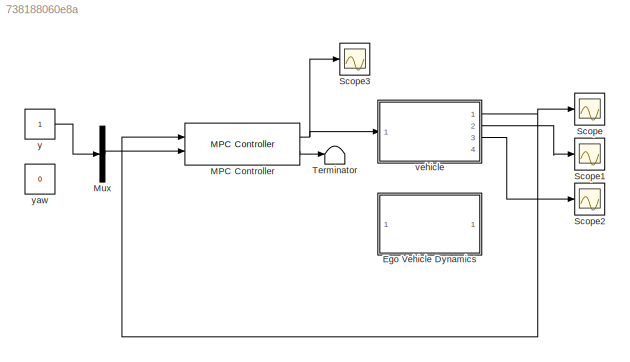
MODEL slx_738188060e8a
KIND model
CONFIG AbsTol = auto
CONFIG EnableMultiTasking = off
CONFIG FixedStep = auto
CONFIG MaxStep = auto
CONFIG MinStep = auto
CONFIG RelTol = 1e-3
CONFIG SampleTimeConstraint = Unconstrained
CONFIG Solver = VariableStepAuto
CONFIG SolverName = VariableStepAuto
CONFIG StartTime = 0.0
CONFIG StopTime = 30
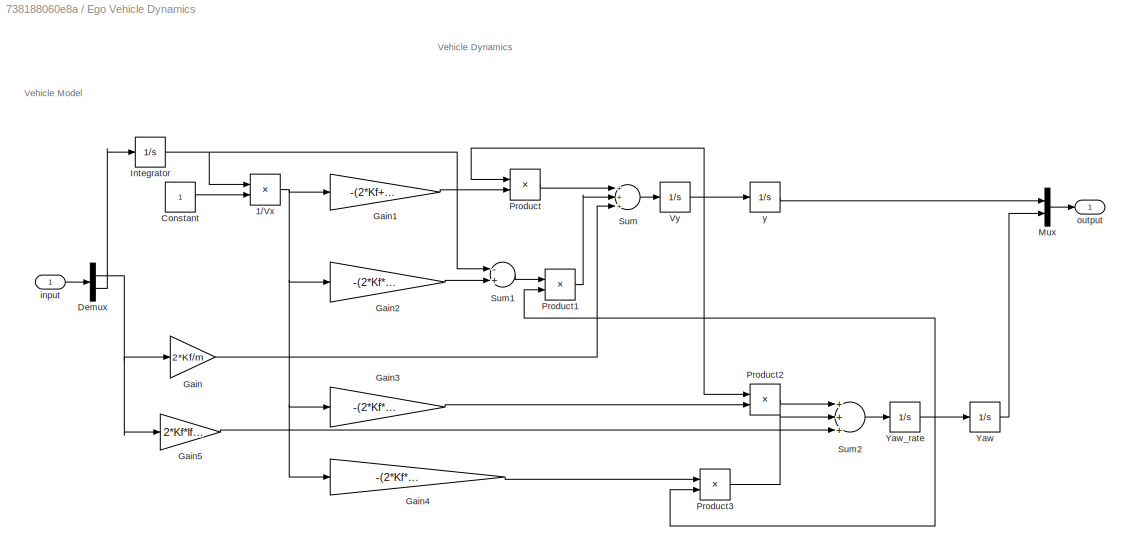
BLOCK [SubSystem] Ego Vehicle Dynamics
  Ports = [1, 1]
  RequestExecContextInheritance = off
BLOCK [Product] Ego Vehicle Dynamics/1//Vx
  InputSameDT = off
  Inputs = /*
  OutDataTypeStr = Inherit: Inherit via internal rule
  Ports = [2, 1]
  RndMeth = Floor
  SaturateOnIntegerOverflow = off
BLOCK [Constant] Ego Vehicle Dynamics/Constant
BLOCK [Demux] Ego Vehicle Dynamics/Demux
  DisplayOption = bar
  Outputs = 2
  Ports = [1, 2]
BLOCK [Gain] Ego Vehicle Dynamics/Gain
  Gain = 2*Kf/m
  OutDataTypeStr = Inherit: Inherit via internal rule
  ParamDataTypeStr = Inherit: Inherit via internal rule
  SaturateOnIntegerOverflow = off
BLOCK [Gain] Ego Vehicle Dynamics/Gain1
  Gain = -(2*Kf+2*Kr)/m
  OutDataTypeStr = Inherit: Inherit via internal rule
  ParamDataTypeStr = Inherit: Inherit via internal rule
  SaturateOnIntegerOverflow = off
BLOCK [Gain] Ego Vehicle Dynamics/Gain2
  Gain = -(2*Kf*lf-2*Kr*lr)/m
  OutDataTypeStr = Inherit: Inherit via internal rule
  ParamDataTypeStr = Inherit: Inherit via internal rule
  SaturateOnIntegerOverflow = off
BLOCK [Gain] Ego Vehicle Dynamics/Gain3
  Gain = -(2*Kf*lf-2*Kr*lr)/I
  OutDataTypeStr = Inherit: Inherit via internal rule
  ParamDataTypeStr = Inherit: Inherit via internal rule
  SaturateOnIntegerOverflow = off
BLOCK [Gain] Ego Vehicle Dynamics/Gain4
  Gain = -(2*Kf*lf^2+2*Kr*lr^2)/I
  OutDataTypeStr = Inherit: Inherit via internal rule
  ParamDataTypeStr = Inherit: Inherit via internal rule
  SaturateOnIntegerOverflow = off
BLOCK [Gain] Ego Vehicle Dynamics/Gain5
  Gain = 2*Kf*lf/I
  OutDataTypeStr = Inherit: Inherit via internal rule
  ParamDataTypeStr = Inherit: Inherit via internal rule
  SaturateOnIntegerOverflow = off
BLOCK [Integrator] Ego Vehicle Dynamics/Integrator
  InitialCondition = 0.1
  LimitOutput = on
  LowerSaturationLimit = 0.01
  Ports = [1, 1]
BLOCK [Mux] Ego Vehicle Dynamics/Mux
  DisplayOption = bar
  Inputs = 2
  Ports = [2, 1]
BLOCK [Product] Ego Vehicle Dynamics/Product
  InputSameDT = off
  OutDataTypeStr = Inherit: Inherit via internal rule
  Ports = [2, 1]
  RndMeth = Floor
  SaturateOnIntegerOverflow = off
BLOCK [Product] Ego Vehicle Dynamics/Product1
  InputSameDT = off
  OutDataTypeStr = Inherit: Inherit via internal rule
  Ports = [2, 1]
  RndMeth = Floor
  SaturateOnIntegerOverflow = off
BLOCK [Product] Ego Vehicle Dynamics/Product2
  InputSameDT = off
  OutDataTypeStr = Inherit: Inherit via internal rule
  Ports = [2, 1]
  RndMeth = Floor
  SaturateOnIntegerOverflow = off
BLOCK [Product] Ego Vehicle Dynamics/Product3
  InputSameDT = off
  OutDataTypeStr = Inherit: Inherit via internal rule
  Ports = [2, 1]
  RndMeth = Floor
  SaturateOnIntegerOverflow = off
BLOCK [Sum] Ego Vehicle Dynamics/Sum
  InputSameDT = off
  Inputs = +++
  OutDataTypeStr = Inherit: Inherit via internal rule
  Ports = [3, 1]
  SaturateOnIntegerOverflow = off
BLOCK [Sum] Ego Vehicle Dynamics/Sum1
  InputSameDT = off
  Inputs = -+
  OutDataTypeStr = Inherit: Inherit via internal rule
  Ports = [2, 1]
  SaturateOnIntegerOverflow = off
BLOCK [Sum] Ego Vehicle Dynamics/Sum2
  InputSameDT = off
  Inputs = +++
  OutDataTypeStr = Inherit: Inherit via internal rule
  Ports = [3, 1]
  SaturateOnIntegerOverflow = off
BLOCK [Integrator] Ego Vehicle Dynamics/Vy
  Ports = [1, 1]
BLOCK [Integrator] Ego Vehicle Dynamics/Yaw
  Ports = [1, 1]
BLOCK [Integrator] Ego Vehicle Dynamics/Yaw_rate 
  Ports = [1, 1]
BLOCK [Inport] Ego Vehicle Dynamics/input
  IconDisplay = Port number
BLOCK [Outport] Ego Vehicle Dynamics/output
  IconDisplay = Port number
BLOCK [Integrator] Ego Vehicle Dynamics/y
  Ports = [1, 1]
BLOCK [Reference] MPC Controller  REF=mpclib/MPC Controller  (lib defined in mdl_ae329e0e0455)
  Ports = [2, 2]
  SCDEnableBlockLinearizationSpecification = on
  SourceBlock = mpclib/MPC Controller
  SourceProductBaseCode = MP
  SourceProductName = Model Predictive Control Toolbox
  SourceType = MPC
BLOCK [Mux] Mux
  DisplayOption = bar
  Inputs = 1
  Ports = [1, 1]
BLOCK [Scope] Scope
  Floating = off
  NumInputPorts = 1
  Ports = [1]
  ScopeSpecificationString = Simulink.scopes.TimeScopeBlockCfg('CurrentConfiguration', extmgr.ConfigurationSet(extmgr.Configuration('Core','General UI',true),extmgr.Configuration('Core','Source UI',true),extmgr.Configuration('Sources','WiredSimulink',true),extmgr.Configuration('Visuals','Time Domain',true,'SerializedDisplays',{struct('MinYLimReal','-0.12539','MaxYLimReal','1.12855','YLabelReal','','MinYLimMag','0.00000','MaxY...<+1359ch>
BLOCK [Scope] Scope1
  Floating = off
  NumInputPorts = 1
  Ports = [1]
  ScopeSpecificationString = Simulink.scopes.TimeScopeBlockCfg('CurrentConfiguration', extmgr.ConfigurationSet(extmgr.Configuration('Core','General UI',true),extmgr.Configuration('Core','Source UI',true),extmgr.Configuration('Sources','WiredSimulink',true,'DataLoggingVariableName','ScopeData1'),extmgr.Configuration('Visuals','Time Domain',true,'SerializedDisplays',{struct('MinYLimReal','0.09','MaxYLimReal','0.11','YLabelReal'...<+1342ch>
BLOCK [Scope] Scope2
  Floating = off
  NumInputPorts = 1
  Ports = [1]
  ScopeSpecificationString = Simulink.scopes.TimeScopeBlockCfg('CurrentConfiguration', extmgr.ConfigurationSet(extmgr.Configuration('Core','General UI',true),extmgr.Configuration('Core','Source UI',true),extmgr.Configuration('Sources','WiredSimulink',true,'DataLoggingVariableName','ScopeData1'),extmgr.Configuration('Visuals','Time Domain',true,'SerializedDisplays',{struct('MinYLimReal','-0.07469','MaxYLimReal','0.67224','YLab...<+1368ch>
BLOCK [Scope] Scope3
  Floating = off
  NumInputPorts = 1
  Ports = [1]
  ScopeSpecificationString = Simulink.scopes.TimeScopeBlockCfg('CurrentConfiguration', extmgr.ConfigurationSet(extmgr.Configuration('Core','General UI',true),extmgr.Configuration('Core','Source UI',true),extmgr.Configuration('Sources','WiredSimulink',true,'DataLoggingVariableName','ScopeData2'),extmgr.Configuration('Visuals','Time Domain',true,'SerializedDisplays',{struct('MinYLimReal','-107.83513','MaxYLimReal','769.89995','...<+1438ch>
BLOCK [Terminator] Terminator
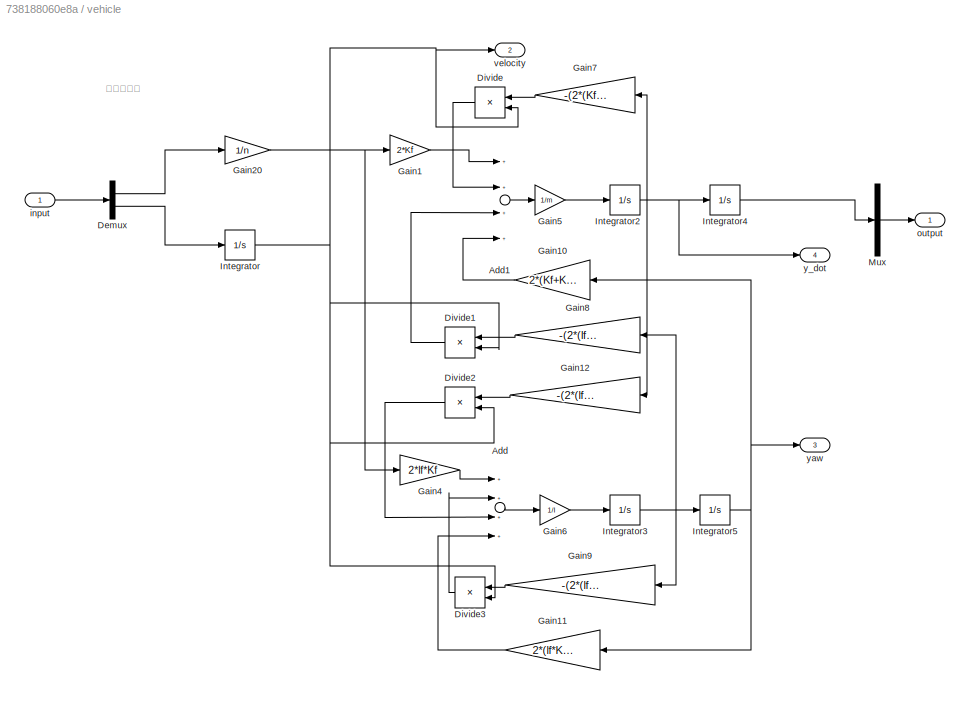
BLOCK [SubSystem] vehicle
  Ports = [1, 4]
  RequestExecContextInheritance = off
BLOCK [Sum] vehicle/Add
  InputSameDT = off
  Inputs = ++++
  OutDataTypeStr = Inherit: Inherit via internal rule
  Ports = [4, 1]
  SaturateOnIntegerOverflow = off
BLOCK [Sum] vehicle/Add1
  InputSameDT = off
  Inputs = ++++
  OutDataTypeStr = Inherit: Inherit via internal rule
  Ports = [4, 1]
  SaturateOnIntegerOverflow = off
BLOCK [Demux] vehicle/Demux
  DisplayOption = bar
  Outputs = 2
  Ports = [1, 2]
BLOCK [Product] vehicle/Divide
  InputSameDT = off
  Inputs = */
  OutDataTypeStr = Inherit: Inherit via internal rule
  Ports = [2, 1]
  RndMeth = Floor
  SaturateOnIntegerOverflow = off
BLOCK [Product] vehicle/Divide1
  InputSameDT = off
  Inputs = */
  OutDataTypeStr = Inherit: Inherit via internal rule
  Ports = [2, 1]
  RndMeth = Floor
  SaturateOnIntegerOverflow = off
BLOCK [Product] vehicle/Divide2
  InputSameDT = off
  Inputs = */
  OutDataTypeStr = Inherit: Inherit via internal rule
  Ports = [2, 1]
  RndMeth = Floor
  SaturateOnIntegerOverflow = off
BLOCK [Product] vehicle/Divide3
  InputSameDT = off
  Inputs = */
  OutDataTypeStr = Inherit: Inherit via internal rule
  Ports = [2, 1]
  RndMeth = Floor
  SaturateOnIntegerOverflow = off
BLOCK [Gain] vehicle/Gain1
  Gain = 2*Kf
  OutDataTypeStr = Inherit: Inherit via internal rule
  ParamDataTypeStr = Inherit: Inherit via internal rule
  SaturateOnIntegerOverflow = off
BLOCK [Gain] vehicle/Gain10
  Gain = 2*(Kf+Kr)
  OutDataTypeStr = Inherit: Inherit via internal rule
  ParamDataTypeStr = Inherit: Inherit via internal rule
  SaturateOnIntegerOverflow = off
BLOCK [Gain] vehicle/Gain11
  Gain = 2*(lf*Kf-lr*Kr)
  OutDataTypeStr = Inherit: Inherit via internal rule
  ParamDataTypeStr = Inherit: Inherit via internal rule
  SaturateOnIntegerOverflow = off
BLOCK [Gain] vehicle/Gain12
  Gain = -(2*(lf*Kf-lr*Kr))
  OutDataTypeStr = Inherit: Inherit via internal rule
  ParamDataTypeStr = Inherit: Inherit via internal rule
  SaturateOnIntegerOverflow = off
BLOCK [Gain] vehicle/Gain20
  Gain = 1/n
  OutDataTypeStr = Inherit: Inherit via internal rule
  ParamDataTypeStr = Inherit: Inherit via internal rule
  SaturateOnIntegerOverflow = off
BLOCK [Gain] vehicle/Gain4
  Gain = 2*lf*Kf
  OutDataTypeStr = Inherit: Inherit via internal rule
  ParamDataTypeStr = Inherit: Inherit via internal rule
  SaturateOnIntegerOverflow = off
BLOCK [Gain] vehicle/Gain5
  Gain = 1/m
  OutDataTypeStr = Inherit: Inherit via internal rule
  ParamDataTypeStr = Inherit: Inherit via internal rule
  SaturateOnIntegerOverflow = off
BLOCK [Gain] vehicle/Gain6
  Gain = 1/I
  OutDataTypeStr = Inherit: Inherit via internal rule
  ParamDataTypeStr = Inherit: Inherit via internal rule
  SaturateOnIntegerOverflow = off
BLOCK [Gain] vehicle/Gain7
  Gain = -(2*(Kf+Kr))
  OutDataTypeStr = Inherit: Inherit via internal rule
  ParamDataTypeStr = Inherit: Inherit via internal rule
  SaturateOnIntegerOverflow = off
BLOCK [Gain] vehicle/Gain8
  Gain = -(2*(lf*Kf-lr*Kr))
  OutDataTypeStr = Inherit: Inherit via internal rule
  ParamDataTypeStr = Inherit: Inherit via internal rule
  SaturateOnIntegerOverflow = off
BLOCK [Gain] vehicle/Gain9
  Gain = -(2*(lf*lf*Kf+lr*lr*Kr))
  OutDataTypeStr = Inherit: Inherit via internal rule
  ParamDataTypeStr = Inherit: Inherit via internal rule
  SaturateOnIntegerOverflow = off
BLOCK [Integrator] vehicle/Integrator
  InitialCondition = 0.1
  LimitOutput = on
  LowerSaturationLimit = 0.0001
  Ports = [1, 1]
BLOCK [Integrator] vehicle/Integrator2
  Ports = [1, 1]
BLOCK [Integrator] vehicle/Integrator3
  Ports = [1, 1]
BLOCK [Integrator] vehicle/Integrator4
  Ports = [1, 1]
BLOCK [Integrator] vehicle/Integrator5
  Ports = [1, 1]
BLOCK [Mux] vehicle/Mux
  DisplayOption = bar
  Inputs = 1
  Ports = [1, 1]
BLOCK [Inport] vehicle/input
  IconDisplay = Port number
BLOCK [Outport] vehicle/output
  IconDisplay = Port number
BLOCK [Outport] vehicle/velocity
  IconDisplay = Port number
  Port = 2
BLOCK [Outport] vehicle/y_dot
  IconDisplay = Port number
  Port = 4
BLOCK [Outport] vehicle/yaw
  IconDisplay = Port number
  Port = 3
BLOCK [Constant] y
BLOCK [Constant] yaw
  Value = 0
ANNOTATION Ego Vehicle Dynamics: Vehicle Dynamics
ANNOTATION Ego Vehicle Dynamics: Vehicle Model
ANNOTATION vehicle: 絶対座標系
NET Ego Vehicle Dynamics/1//Vx:1 -> Ego Vehicle Dynamics/Gain1:1, Ego Vehicle Dynamics/Gain2:1, Ego Vehicle Dynamics/Gain3:1, Ego Vehicle Dynamics/Gain4:1
LINE Ego Vehicle Dynamics/Constant:1 -> Ego Vehicle Dynamics/1//Vx:2
NET Ego Vehicle Dynamics/Demux:1 -> Ego Vehicle Dynamics/Gain5:1, Ego Vehicle Dynamics/Gain:1
LINE Ego Vehicle Dynamics/Demux:2 -> Ego Vehicle Dynamics/Integrator:1
LINE Ego Vehicle Dynamics/Gain1:1 -> Ego Vehicle Dynamics/Product:2
LINE Ego Vehicle Dynamics/Gain2:1 -> Ego Vehicle Dynamics/Sum1:2
LINE Ego Vehicle Dynamics/Gain3:1 -> Ego Vehicle Dynamics/Product2:2
LINE Ego Vehicle Dynamics/Gain4:1 -> Ego Vehicle Dynamics/Product3:1
LINE Ego Vehicle Dynamics/Gain5:1 -> Ego Vehicle Dynamics/Sum2:3
LINE Ego Vehicle Dynamics/Gain:1 -> Ego Vehicle Dynamics/Sum:3
NET Ego Vehicle Dynamics/Integrator:1 -> Ego Vehicle Dynamics/1//Vx:1, Ego Vehicle Dynamics/Sum1:1
LINE Ego Vehicle Dynamics/Mux:1 -> Ego Vehicle Dynamics/output:1
LINE Ego Vehicle Dynamics/Product1:1 -> Ego Vehicle Dynamics/Sum:2
LINE Ego Vehicle Dynamics/Product2:1 -> Ego Vehicle Dynamics/Sum2:1
LINE Ego Vehicle Dynamics/Product3:1 -> Ego Vehicle Dynamics/Sum2:2
LINE Ego Vehicle Dynamics/Product:1 -> Ego Vehicle Dynamics/Sum:1
LINE Ego Vehicle Dynamics/Sum1:1 -> Ego Vehicle Dynamics/Product1:1
LINE Ego Vehicle Dynamics/Sum2:1 -> Ego Vehicle Dynamics/Yaw_rate :1
LINE Ego Vehicle Dynamics/Sum:1 -> Ego Vehicle Dynamics/Vy:1
NET Ego Vehicle Dynamics/Vy:1 -> Ego Vehicle Dynamics/Product2:1, Ego Vehicle Dynamics/Product:1, Ego Vehicle Dynamics/y:1
LINE Ego Vehicle Dynamics/Yaw:1 -> Ego Vehicle Dynamics/Mux:2
NET Ego Vehicle Dynamics/Yaw_rate :1 -> Ego Vehicle Dynamics/Product1:2, Ego Vehicle Dynamics/Product3:2, Ego Vehicle Dynamics/Yaw:1
LINE Ego Vehicle Dynamics/input:1 -> Ego Vehicle Dynamics/Demux:1
LINE Ego Vehicle Dynamics/y:1 -> Ego Vehicle Dynamics/Mux:1
NET MPC Controller:1 -> Scope3:1, vehicle:1
LINE MPC Controller:2 -> Terminator:1
LINE Mux:1 -> MPC Controller:2
LINE vehicle/Add1:1 -> vehicle/Gain5:1
LINE vehicle/Add:1 -> vehicle/Gain6:1
LINE vehicle/Demux:1 -> vehicle/Gain20:1
LINE vehicle/Demux:2 -> vehicle/Integrator:1
LINE vehicle/Divide1:1 -> vehicle/Add1:3
LINE vehicle/Divide2:1 -> vehicle/Add:3
LINE vehicle/Divide3:1 -> vehicle/Add:2
LINE vehicle/Divide:1 -> vehicle/Add1:2
LINE vehicle/Gain10:1 -> vehicle/Add1:4
LINE vehicle/Gain11:1 -> vehicle/Add:4
LINE vehicle/Gain12:1 -> vehicle/Divide2:1
LINE vehicle/Gain1:1 -> vehicle/Add1:1
NET vehicle/Gain20:1 -> vehicle/Gain1:1, vehicle/Gain4:1
LINE vehicle/Gain4:1 -> vehicle/Add:1
LINE vehicle/Gain5:1 -> vehicle/Integrator2:1
LINE vehicle/Gain6:1 -> vehicle/Integrator3:1
LINE vehicle/Gain7:1 -> vehicle/Divide:1
LINE vehicle/Gain8:1 -> vehicle/Divide1:1
LINE vehicle/Gain9:1 -> vehicle/Divide3:1
NET vehicle/Integrator2:1 -> vehicle/Gain12:1, vehicle/Gain7:1, vehicle/Integrator4:1, vehicle/y_dot:1
NET vehicle/Integrator3:1 -> vehicle/Gain8:1, vehicle/Gain9:1, vehicle/Integrator5:1
LINE vehicle/Integrator4:1 -> vehicle/Mux:1
NET vehicle/Integrator5:1 -> vehicle/Gain10:1, vehicle/Gain11:1, vehicle/yaw:1
NET vehicle/Integrator:1 -> vehicle/Divide1:2, vehicle/Divide2:2, vehicle/Divide3:2, vehicle/Divide:2, vehicle/velocity:1
LINE vehicle/Mux:1 -> vehicle/output:1
LINE vehicle/input:1 -> vehicle/Demux:1
NET vehicle:1 -> MPC Controller:1, Scope:1
LINE vehicle:2 -> Scope1:1
LINE vehicle:3 -> Scope2:1
LINE y:1 -> Mux:1
note: NET lines group one-source signal fan-out (src -> all destinations, sorted); 1:1 wires keep LINE
